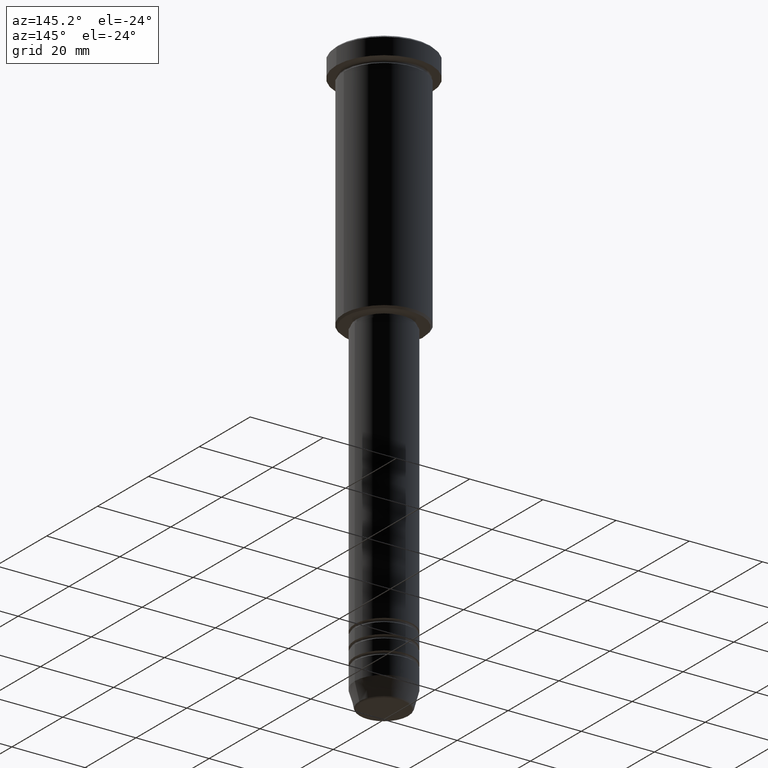
[diagram: clean part render]
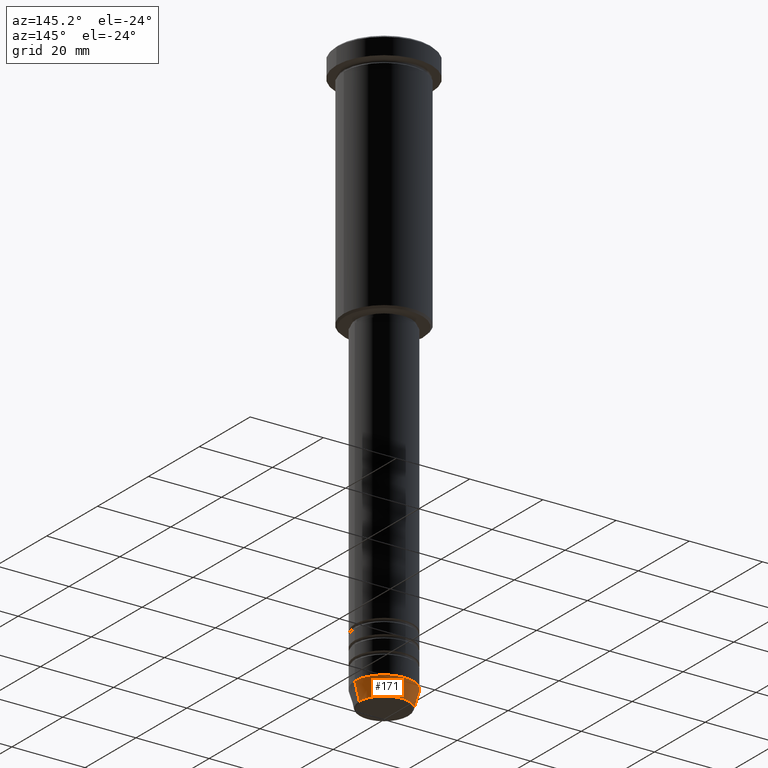
[diagram: same view with one face highlighted and labeled with its STEP entity id]
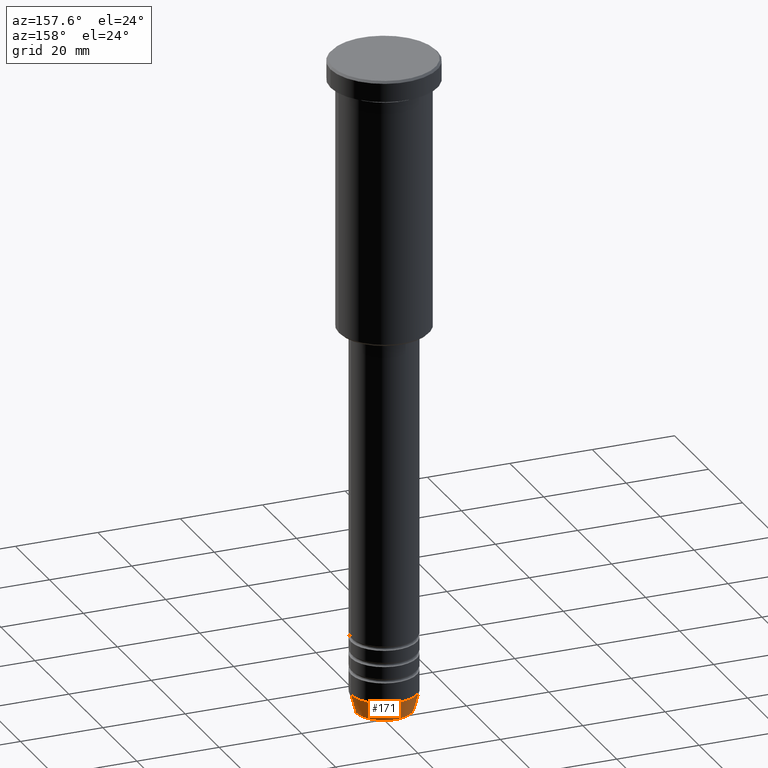
[diagram: same view with one face highlighted and labeled with its STEP entity id]
A machine part, auxiliary view. The second image highlights one B-rep face of the part: STEP entity #171.
A second angle (auxiliary view) of the same face is appended — the face is thin or edge-on in the first view.
In plain terms, the highlighted conical surface has half-angle 15 deg.
Its self-contained STEP definition (entity closure, byte-faithful):
#33 = CARTESIAN_POINT ( 'NONE',  ( -8.000000000000000000, 9.797174393178825657E-16, -155.0000000000000000 ) ) ;
#45 = ORIENTED_EDGE ( 'NONE', *, *, #78, .T. ) ;
#78 = EDGE_CURVE ( 'NONE', #296, #98, #952, .T. ) ;
#86 = AXIS2_PLACEMENT_3D ( 'NONE', #1013, #116, #815 ) ;
#98 = VERTEX_POINT ( 'NONE', #289 ) ;
#101 = DIRECTION ( 'NONE',  ( -0.000000000000000000, -0.000000000000000000, 1.000000000000000000 ) ) ;
#116 = DIRECTION ( 'NONE',  ( -0.000000000000000000, -0.000000000000000000, 1.000000000000000000 ) ) ;
#171 = ADVANCED_FACE ( 'NONE', ( #926 ), #1065, .T. ) ;
#185 = AXIS2_PLACEMENT_3D ( 'NONE', #650, #101, #383 ) ;
#210 = DIRECTION ( 'NONE',  ( 1.000000000000000000, 0.000000000000000000, 0.000000000000000000 ) ) ;
#231 = VERTEX_POINT ( 'NONE', #33 ) ;
#289 = CARTESIAN_POINT ( 'NONE',  ( -6.759553456999439547, 9.037619948979308185E-16, -159.6294095225512706 ) ) ;
#296 = VERTEX_POINT ( 'NONE', #589 ) ;
#371 = CIRCLE ( 'NONE', #86, 8.000000000000000000 ) ;
#373 = DIRECTION ( 'NONE',  ( -0.000000000000000000, -0.000000000000000000, 1.000000000000000000 ) ) ;
#383 = DIRECTION ( 'NONE',  ( 1.000000000000000000, 0.000000000000000000, 0.000000000000000000 ) ) ;
#450 = VECTOR ( 'NONE', #648, 999.9999999999998863 ) ;
#498 = EDGE_CURVE ( 'NONE', #1076, #231, #371, .T. ) ;
#545 = EDGE_LOOP ( 'NONE', ( #45, #1129, #769, #927 ) ) ;
#573 = CARTESIAN_POINT ( 'NONE',  ( 0.000000000000000000, 0.000000000000000000, -159.6294095225512706 ) ) ;
#589 = CARTESIAN_POINT ( 'NONE',  ( 6.759553456999438659, 0.000000000000000000, -159.6294095225512706 ) ) ;
#648 = DIRECTION ( 'NONE',  ( -0.2588190451025202399, 3.169619151431758162E-17, 0.9659258262890684232 ) ) ;
#650 = CARTESIAN_POINT ( 'NONE',  ( 0.000000000000000000, 0.000000000000000000, -155.0000000000000000 ) ) ;
#662 = CARTESIAN_POINT ( 'NONE',  ( 8.000000000000000000, 0.000000000000000000, -155.0000000000000000 ) ) ;
#697 = EDGE_CURVE ( 'NONE', #296, #1076, #1140, .T. ) ;
#735 = VECTOR ( 'NONE', #760, 999.9999999999998863 ) ;
#743 = LINE ( 'NONE', #936, #450 ) ;
#760 = DIRECTION ( 'NONE',  ( 0.2588190451025202399, 0.000000000000000000, 0.9659258262890684232 ) ) ;
#769 = ORIENTED_EDGE ( 'NONE', *, *, #498, .F. ) ;
#815 = DIRECTION ( 'NONE',  ( 1.000000000000000000, 0.000000000000000000, 0.000000000000000000 ) ) ;
#926 = FACE_OUTER_BOUND ( 'NONE', #545, .T. ) ;
#927 = ORIENTED_EDGE ( 'NONE', *, *, #697, .F. ) ;
#936 = CARTESIAN_POINT ( 'NONE',  ( -8.000000000000000000, 9.797174393178825657E-16, -155.0000000000000000 ) ) ;
#939 = CARTESIAN_POINT ( 'NONE',  ( 8.000000000000000000, 0.000000000000000000, -155.0000000000000000 ) ) ;
#952 = CIRCLE ( 'NONE', #1102, 6.759553456999438659 ) ;
#1013 = CARTESIAN_POINT ( 'NONE',  ( 0.000000000000000000, 0.000000000000000000, -155.0000000000000000 ) ) ;
#1015 = EDGE_CURVE ( 'NONE', #98, #231, #743, .T. ) ;
#1065 = CONICAL_SURFACE ( 'NONE', #185, 8.000000000000000000, 0.2617993877991488527 ) ;
#1076 = VERTEX_POINT ( 'NONE', #939 ) ;
#1102 = AXIS2_PLACEMENT_3D ( 'NONE', #573, #373, #210 ) ;
#1129 = ORIENTED_EDGE ( 'NONE', *, *, #1015, .T. ) ;
#1140 = LINE ( 'NONE', #662, #735 ) ;